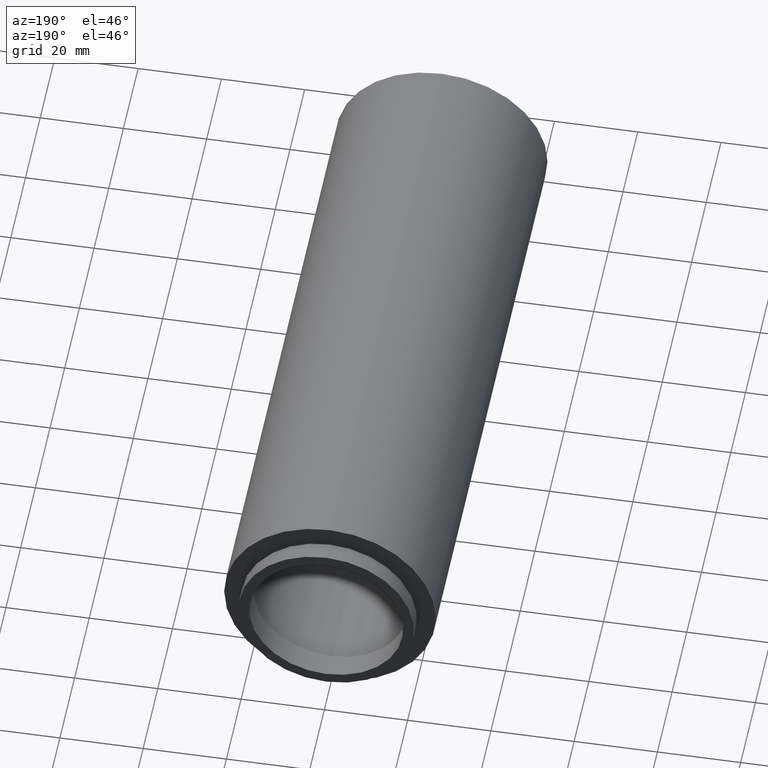
[diagram: clean part render]
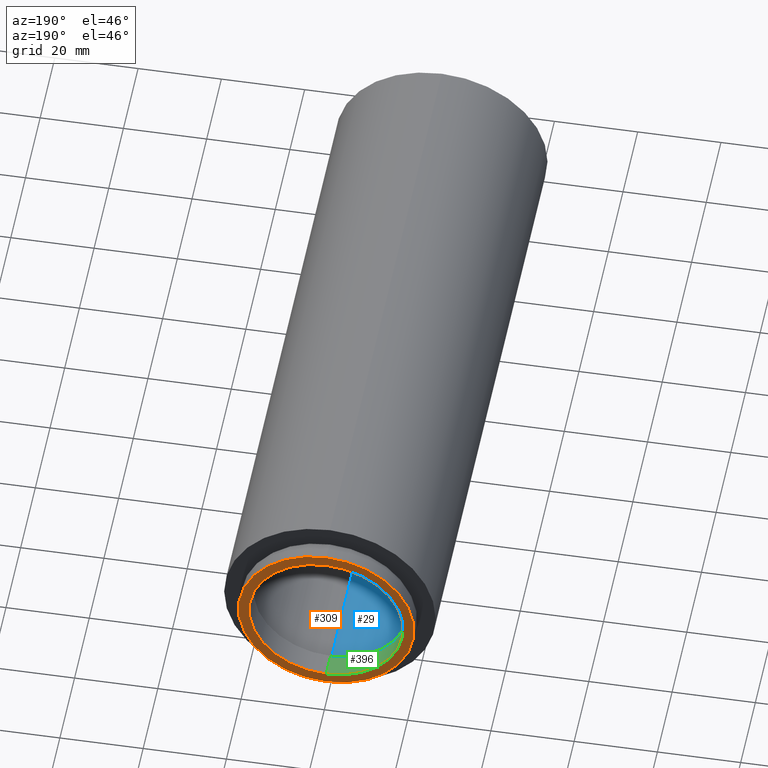
[diagram: same view with three faces highlighted in distinct colors, each labeled with its STEP entity id]
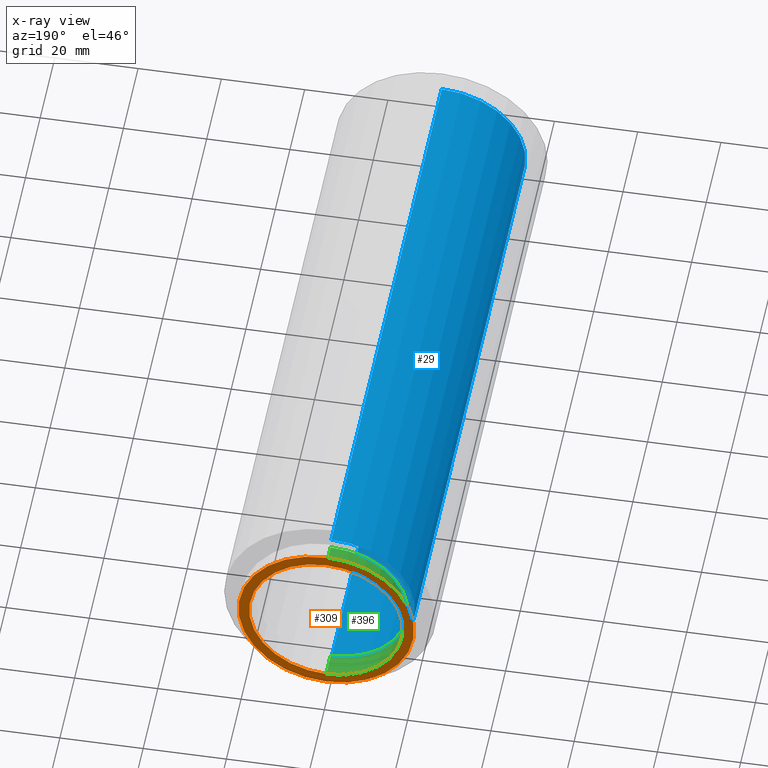
[diagram: x-ray of the same camera — body ghosted, the three highlighted faces saturated]
A machine part, auxiliary view with three faces highlighted in distinct colors.
The next image is the same camera in x-ray (body ghosted, the three faces saturated) — at least one of them is partly hidden behind the body in this view.
Their STEP definitions:

[orange] entity #309 — the highlighted planar face has unit normal (0, -1, 0).
#25 = AXIS2_PLACEMENT_3D ( 'NONE', #338, #479, #200 ) ;
#27 = CIRCLE ( 'NONE', #31, 21.10000000000000100 ) ;
#31 = AXIS2_PLACEMENT_3D ( 'NONE', #577, #251, #253 ) ;
#47 = EDGE_CURVE ( 'NONE', #140, #119, #117, .T. ) ;
#67 = DIRECTION ( 'NONE',  ( -0.0000000000000000000, 1.000000000000000000, -0.0000000000000000000 ) ) ;
#116 = PLANE ( 'NONE',  #494 ) ;
#117 = CIRCLE ( 'NONE', #166, 18.50000000000000000 ) ;
#119 = VERTEX_POINT ( 'NONE', #310 ) ;
#125 = CIRCLE ( 'NONE', #318, 21.10000000000000100 ) ;
#133 = CARTESIAN_POINT ( 'NONE',  ( 0.0000000000000000000, 157.3999999999999800, 0.0000000000000000000 ) ) ;
#140 = VERTEX_POINT ( 'NONE', #414 ) ;
#165 = DIRECTION ( 'NONE',  ( 0.0000000000000000000, -1.000000000000000000, 0.0000000000000000000 ) ) ;
#166 = AXIS2_PLACEMENT_3D ( 'NONE', #133, #556, #457 ) ;
#200 = DIRECTION ( 'NONE',  ( 0.0000000000000000000, 0.0000000000000000000, 1.000000000000000000 ) ) ;
#204 = ORIENTED_EDGE ( 'NONE', *, *, #234, .F. ) ;
#208 = EDGE_CURVE ( 'NONE', #583, #453, #27, .T. ) ;
#210 = CARTESIAN_POINT ( 'NONE',  ( 0.0000000000000000000, 157.3999999999999800, 0.0000000000000000000 ) ) ;
#227 = ORIENTED_EDGE ( 'NONE', *, *, #47, .F. ) ;
#234 = EDGE_CURVE ( 'NONE', #119, #140, #592, .T. ) ;
#251 = DIRECTION ( 'NONE',  ( -0.0000000000000000000, 1.000000000000000000, -0.0000000000000000000 ) ) ;
#253 = DIRECTION ( 'NONE',  ( 0.0000000000000000000, 0.0000000000000000000, 1.000000000000000000 ) ) ;
#280 = ORIENTED_EDGE ( 'NONE', *, *, #208, .T. ) ;
#301 = EDGE_CURVE ( 'NONE', #453, #583, #125, .T. ) ;
#309 = ADVANCED_FACE ( 'NONE', ( #312, #321 ), #116, .F. ) ;
#310 = CARTESIAN_POINT ( 'NONE',  ( 0.0000000000000000000, 157.3999999999999800, 18.50000000000000000 ) ) ;
#312 = FACE_BOUND ( 'NONE', #315, .T. ) ;
#315 = EDGE_LOOP ( 'NONE', ( #204, #227 ) ) ;
#318 = AXIS2_PLACEMENT_3D ( 'NONE', #210, #67, #390 ) ;
#321 = FACE_OUTER_BOUND ( 'NONE', #516, .T. ) ;
#323 = ORIENTED_EDGE ( 'NONE', *, *, #301, .T. ) ;
#338 = CARTESIAN_POINT ( 'NONE',  ( 0.0000000000000000000, 157.3999999999999800, 0.0000000000000000000 ) ) ;
#371 = CARTESIAN_POINT ( 'NONE',  ( 2.584004746200915400E-015, 157.3999999999999800, -21.10000000000000100 ) ) ;
#390 = DIRECTION ( 'NONE',  ( 0.0000000000000000000, 0.0000000000000000000, 1.000000000000000000 ) ) ;
#414 = CARTESIAN_POINT ( 'NONE',  ( 2.265596578422603400E-015, 157.3999999999999800, -18.50000000000000000 ) ) ;
#436 = DIRECTION ( 'NONE',  ( 0.0000000000000000000, -0.0000000000000000000, -1.000000000000000000 ) ) ;
#453 = VERTEX_POINT ( 'NONE', #371 ) ;
#457 = DIRECTION ( 'NONE',  ( 0.0000000000000000000, 0.0000000000000000000, 1.000000000000000000 ) ) ;
#479 = DIRECTION ( 'NONE',  ( -0.0000000000000000000, 1.000000000000000000, -0.0000000000000000000 ) ) ;
#488 = CARTESIAN_POINT ( 'NONE',  ( 18.50000000000000000, 157.3999999999999800, 0.0000000000000000000 ) ) ;
#494 = AXIS2_PLACEMENT_3D ( 'NONE', #488, #165, #436 ) ;
#516 = EDGE_LOOP ( 'NONE', ( #280, #323 ) ) ;
#556 = DIRECTION ( 'NONE',  ( -0.0000000000000000000, 1.000000000000000000, -0.0000000000000000000 ) ) ;
#577 = CARTESIAN_POINT ( 'NONE',  ( 0.0000000000000000000, 157.3999999999999800, 0.0000000000000000000 ) ) ;
#581 = CARTESIAN_POINT ( 'NONE',  ( 0.0000000000000000000, 157.3999999999999800, 21.10000000000000100 ) ) ;
#583 = VERTEX_POINT ( 'NONE', #581 ) ;
#592 = CIRCLE ( 'NONE', #25, 18.50000000000000000 ) ;

[blue] entity #29 — the highlighted cylindrical surface (partial cylindrical patch) has radius 20.1 mm, axis along (-0, 1, -0).
#12 = CIRCLE ( 'NONE', #461, 20.10000000000001900 ) ;
#18 = VERTEX_POINT ( 'NONE', #23 ) ;
#20 = ORIENTED_EDGE ( 'NONE', *, *, #236, .T. ) ;
#23 = CARTESIAN_POINT ( 'NONE',  ( 2.461540066286182200E-015, 150.3999999999999800, -20.10000000000001900 ) ) ;
#29 = ADVANCED_FACE ( 'NONE', ( #472 ), #219, .F. ) ;
#40 = LINE ( 'NONE', #153, #408 ) ;
#41 = DIRECTION ( 'NONE',  ( -0.0000000000000000000, 1.000000000000000000, -0.0000000000000000000 ) ) ;
#45 = DIRECTION ( 'NONE',  ( -0.0000000000000000000, 1.000000000000000000, -0.0000000000000000000 ) ) ;
#64 = DIRECTION ( 'NONE',  ( 0.0000000000000000000, 0.0000000000000000000, 1.000000000000000000 ) ) ;
#85 = CARTESIAN_POINT ( 'NONE',  ( 0.0000000000000000000, 161.3761669434274500, 0.0000000000000000000 ) ) ;
#87 = VERTEX_POINT ( 'NONE', #399 ) ;
#120 = AXIS2_PLACEMENT_3D ( 'NONE', #334, #45, #283 ) ;
#153 = CARTESIAN_POINT ( 'NONE',  ( 0.0000000000000000000, 161.3761669434274500, 20.10000000000001900 ) ) ;
#179 = DIRECTION ( 'NONE',  ( 0.0000000000000000000, 0.0000000000000000000, 1.000000000000000000 ) ) ;
#213 = LINE ( 'NONE', #349, #490 ) ;
#219 = CYLINDRICAL_SURFACE ( 'NONE', #574, 20.10000000000001900 ) ;
#236 = EDGE_CURVE ( 'NONE', #18, #87, #12, .T. ) ;
#246 = CARTESIAN_POINT ( 'NONE',  ( 0.0000000000000000000, -2.775557561562891400E-014, 20.10000000000001900 ) ) ;
#258 = VERTEX_POINT ( 'NONE', #246 ) ;
#283 = DIRECTION ( 'NONE',  ( 0.0000000000000000000, 0.0000000000000000000, 1.000000000000000000 ) ) ;
#331 = EDGE_CURVE ( 'NONE', #609, #18, #213, .T. ) ;
#334 = CARTESIAN_POINT ( 'NONE',  ( 0.0000000000000000000, -2.775557561562891400E-014, 0.0000000000000000000 ) ) ;
#349 = CARTESIAN_POINT ( 'NONE',  ( 2.461540066286182200E-015, 161.3761669434274500, -20.10000000000001900 ) ) ;
#368 = EDGE_LOOP ( 'NONE', ( #442, #598, #20, #498 ) ) ;
#380 = DIRECTION ( 'NONE',  ( -0.0000000000000000000, 1.000000000000000000, -0.0000000000000000000 ) ) ;
#387 = CIRCLE ( 'NONE', #120, 20.10000000000001900 ) ;
#388 = DIRECTION ( 'NONE',  ( -0.0000000000000000000, 1.000000000000000000, -0.0000000000000000000 ) ) ;
#399 = CARTESIAN_POINT ( 'NONE',  ( 0.0000000000000000000, 150.3999999999999800, 20.10000000000001900 ) ) ;
#408 = VECTOR ( 'NONE', #426, 1000.000000000000000 ) ;
#426 = DIRECTION ( 'NONE',  ( -0.0000000000000000000, 1.000000000000000000, -0.0000000000000000000 ) ) ;
#442 = ORIENTED_EDGE ( 'NONE', *, *, #607, .F. ) ;
#461 = AXIS2_PLACEMENT_3D ( 'NONE', #582, #380, #64 ) ;
#472 = FACE_OUTER_BOUND ( 'NONE', #368, .T. ) ;
#490 = VECTOR ( 'NONE', #388, 1000.000000000000000 ) ;
#498 = ORIENTED_EDGE ( 'NONE', *, *, #552, .F. ) ;
#552 = EDGE_CURVE ( 'NONE', #258, #87, #40, .T. ) ;
#574 = AXIS2_PLACEMENT_3D ( 'NONE', #85, #41, #179 ) ;
#582 = CARTESIAN_POINT ( 'NONE',  ( 0.0000000000000000000, 150.3999999999999800, 0.0000000000000000000 ) ) ;
#598 = ORIENTED_EDGE ( 'NONE', *, *, #331, .T. ) ;
#607 = EDGE_CURVE ( 'NONE', #609, #258, #387, .T. ) ;
#609 = VERTEX_POINT ( 'NONE', #623 ) ;
#623 = CARTESIAN_POINT ( 'NONE',  ( 2.461540066286182200E-015, -2.775557561562891400E-014, -20.10000000000001900 ) ) ;

[green] entity #396 — the highlighted cylindrical surface (partial cylindrical patch) has radius 18.5 mm, axis along (-0, 1, -0).
#13 = CARTESIAN_POINT ( 'NONE',  ( 0.0000000000000000000, 161.3761669434274500, 18.50000000000000000 ) ) ;
#39 = VERTEX_POINT ( 'NONE', #455 ) ;
#47 = EDGE_CURVE ( 'NONE', #140, #119, #117, .T. ) ;
#61 = DIRECTION ( 'NONE',  ( -0.0000000000000000000, 1.000000000000000000, -0.0000000000000000000 ) ) ;
#117 = CIRCLE ( 'NONE', #166, 18.50000000000000000 ) ;
#119 = VERTEX_POINT ( 'NONE', #310 ) ;
#133 = CARTESIAN_POINT ( 'NONE',  ( 0.0000000000000000000, 157.3999999999999800, 0.0000000000000000000 ) ) ;
#140 = VERTEX_POINT ( 'NONE', #414 ) ;
#142 = CARTESIAN_POINT ( 'NONE',  ( 0.0000000000000000000, 151.3999999999999800, 0.0000000000000000000 ) ) ;
#143 = EDGE_CURVE ( 'NONE', #39, #140, #395, .T. ) ;
#166 = AXIS2_PLACEMENT_3D ( 'NONE', #133, #556, #457 ) ;
#187 = DIRECTION ( 'NONE',  ( -0.0000000000000000000, 1.000000000000000000, -0.0000000000000000000 ) ) ;
#230 = DIRECTION ( 'NONE',  ( -0.0000000000000000000, 1.000000000000000000, -0.0000000000000000000 ) ) ;
#254 = VECTOR ( 'NONE', #61, 1000.000000000000000 ) ;
#277 = AXIS2_PLACEMENT_3D ( 'NONE', #142, #523, #373 ) ;
#281 = CIRCLE ( 'NONE', #277, 18.50000000000000000 ) ;
#300 = EDGE_CURVE ( 'NONE', #573, #119, #599, .T. ) ;
#310 = CARTESIAN_POINT ( 'NONE',  ( 0.0000000000000000000, 157.3999999999999800, 18.50000000000000000 ) ) ;
#355 = VECTOR ( 'NONE', #230, 1000.000000000000000 ) ;
#358 = FACE_OUTER_BOUND ( 'NONE', #525, .T. ) ;
#373 = DIRECTION ( 'NONE',  ( 0.0000000000000000000, 0.0000000000000000000, 1.000000000000000000 ) ) ;
#379 = ORIENTED_EDGE ( 'NONE', *, *, #300, .F. ) ;
#395 = LINE ( 'NONE', #514, #355 ) ;
#396 = ADVANCED_FACE ( 'NONE', ( #358 ), #542, .F. ) ;
#403 = ORIENTED_EDGE ( 'NONE', *, *, #524, .F. ) ;
#414 = CARTESIAN_POINT ( 'NONE',  ( 2.265596578422603400E-015, 157.3999999999999800, -18.50000000000000000 ) ) ;
#455 = CARTESIAN_POINT ( 'NONE',  ( 2.265596578422603400E-015, 151.3999999999999800, -18.50000000000000000 ) ) ;
#457 = DIRECTION ( 'NONE',  ( 0.0000000000000000000, 0.0000000000000000000, 1.000000000000000000 ) ) ;
#478 = ORIENTED_EDGE ( 'NONE', *, *, #47, .T. ) ;
#491 = ORIENTED_EDGE ( 'NONE', *, *, #143, .T. ) ;
#500 = DIRECTION ( 'NONE',  ( 0.0000000000000000000, 0.0000000000000000000, 1.000000000000000000 ) ) ;
#512 = AXIS2_PLACEMENT_3D ( 'NONE', #618, #187, #500 ) ;
#514 = CARTESIAN_POINT ( 'NONE',  ( 2.265596578422603400E-015, 161.3761669434274500, -18.50000000000000000 ) ) ;
#523 = DIRECTION ( 'NONE',  ( -0.0000000000000000000, 1.000000000000000000, -0.0000000000000000000 ) ) ;
#524 = EDGE_CURVE ( 'NONE', #39, #573, #281, .T. ) ;
#525 = EDGE_LOOP ( 'NONE', ( #403, #491, #478, #379 ) ) ;
#528 = CARTESIAN_POINT ( 'NONE',  ( 0.0000000000000000000, 151.3999999999999800, 18.50000000000000000 ) ) ;
#542 = CYLINDRICAL_SURFACE ( 'NONE', #512, 18.50000000000000000 ) ;
#556 = DIRECTION ( 'NONE',  ( -0.0000000000000000000, 1.000000000000000000, -0.0000000000000000000 ) ) ;
#573 = VERTEX_POINT ( 'NONE', #528 ) ;
#599 = LINE ( 'NONE', #13, #254 ) ;
#618 = CARTESIAN_POINT ( 'NONE',  ( 0.0000000000000000000, 161.3761669434274500, 0.0000000000000000000 ) ) ;